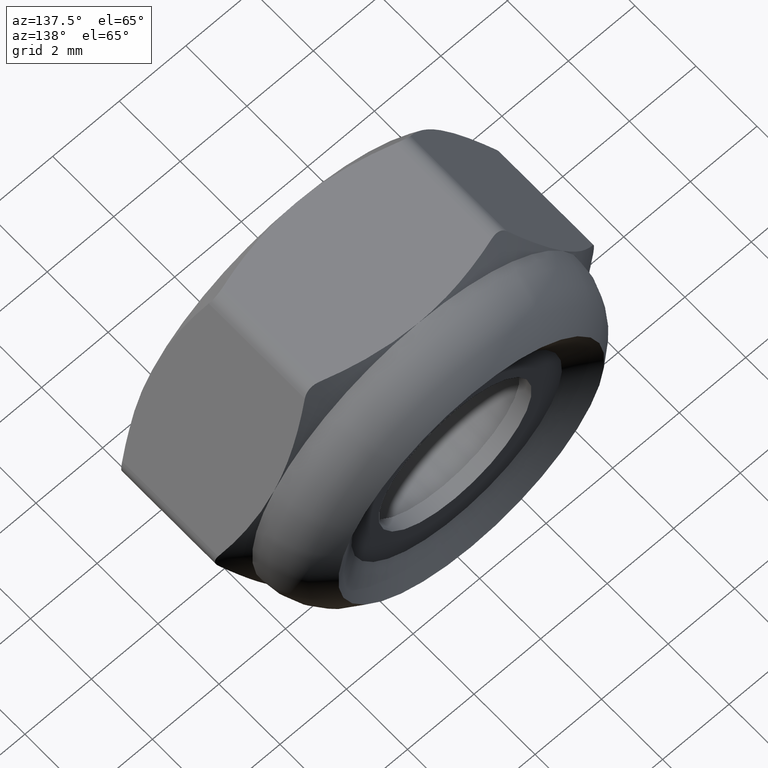
[diagram: clean part render]
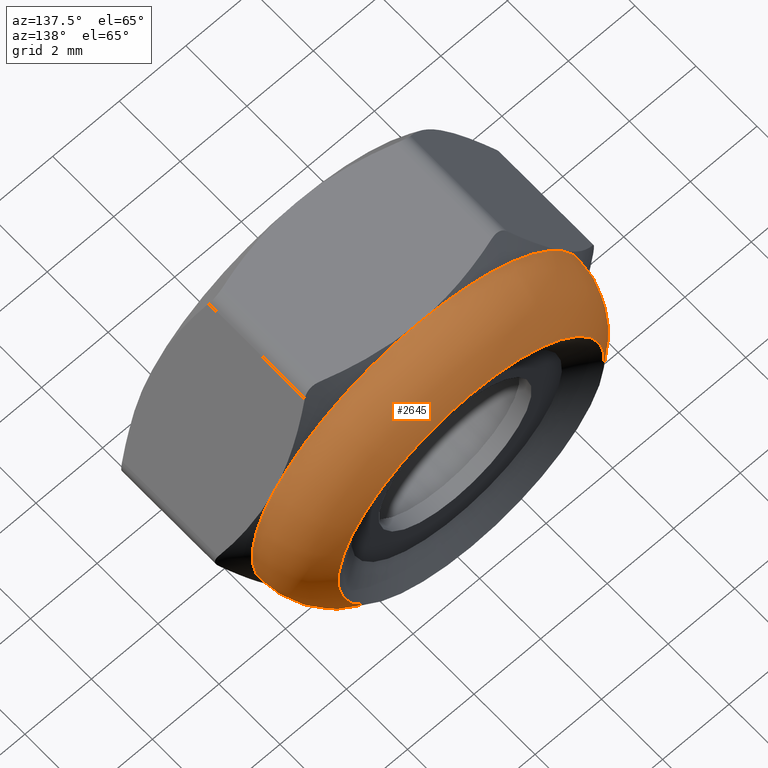
[diagram: same view with one face highlighted and labeled with its STEP entity id]
A machine part, auxiliary view. The second image highlights one B-rep face of the part: STEP entity #2645.
In plain terms, the highlighted toroidal blend (fillet) surface has major radius 3 mm and minor (blend) radius 2 mm.
Its self-contained STEP definition (entity closure, byte-faithful):
#200 = CARTESIAN_POINT ( 'NONE',  ( 4.330127018922192761, 2.000000000000000000, -2.500000000000001776 ) ) ;
#603 = DIRECTION ( 'NONE',  ( 0.000000000000000000, 0.000000000000000000, -1.000000000000000000 ) ) ;
#614 = VERTEX_POINT ( 'NONE', #8425 ) ;
#626 = EDGE_LOOP ( 'NONE', ( #15178 ) ) ;
#671 = DIRECTION ( 'NONE',  ( -0.000000000000000000, -1.000000000000000000, -0.000000000000000000 ) ) ;
#1294 = VERTEX_POINT ( 'NONE', #13614 ) ;
#1524 = CIRCLE ( 'NONE', #1858, 5.000000000000000000 ) ;
#1695 = DIRECTION ( 'NONE',  ( 1.776356839400250465E-15, 0.000000000000000000, 1.000000000000000000 ) ) ;
#1737 = DIRECTION ( 'NONE',  ( -3.552713678800500929E-15, 0.000000000000000000, 1.000000000000000000 ) ) ;
#1858 = AXIS2_PLACEMENT_3D ( 'NONE', #15053, #11325, #13718 ) ;
#1872 = EDGE_CURVE ( 'NONE', #13733, #6317, #12132, .T. ) ;
#1939 = DIRECTION ( 'NONE',  ( 0.000000000000000000, -1.000000000000000000, 0.000000000000000000 ) ) ;
#2055 = ORIENTED_EDGE ( 'NONE', *, *, #5380, .F. ) ;
#2297 = EDGE_CURVE ( 'NONE', #2732, #2732, #12900, .T. ) ;
#2380 = CARTESIAN_POINT ( 'NONE',  ( 0.000000000000000000, 2.000000000000000000, 0.000000000000000000 ) ) ;
#2414 = EDGE_CURVE ( 'NONE', #1294, #13684, #7546, .T. ) ;
#2645 = ADVANCED_FACE ( 'NONE', ( #9256, #4684 ), #6765, .T. ) ;
#2732 = VERTEX_POINT ( 'NONE', #6062 ) ;
#2907 = CARTESIAN_POINT ( 'NONE',  ( -4.330127018922193649, 2.000000000000000000, 2.499999999999999112 ) ) ;
#3330 = CARTESIAN_POINT ( 'NONE',  ( 4.330127018922193649, 2.000000000000000000, 2.499999999999999112 ) ) ;
#3337 = CARTESIAN_POINT ( 'NONE',  ( 0.000000000000000000, 2.000000000000000000, 0.000000000000000000 ) ) ;
#4210 = CARTESIAN_POINT ( 'NONE',  ( 0.000000000000000000, 2.000000000000000000, 0.000000000000000000 ) ) ;
#4353 = ORIENTED_EDGE ( 'NONE', *, *, #2414, .F. ) ;
#4532 = ORIENTED_EDGE ( 'NONE', *, *, #9912, .F. ) ;
#4684 = FACE_OUTER_BOUND ( 'NONE', #5933, .T. ) ;
#4839 = DIRECTION ( 'NONE',  ( -0.000000000000000000, -1.000000000000000000, -0.000000000000000000 ) ) ;
#4904 = AXIS2_PLACEMENT_3D ( 'NONE', #5343, #5294, #5461 ) ;
#5294 = DIRECTION ( 'NONE',  ( 0.000000000000000000, 1.000000000000000000, 0.000000000000000000 ) ) ;
#5343 = CARTESIAN_POINT ( 'NONE',  ( 0.000000000000000000, 2.000000000000000000, 0.000000000000000000 ) ) ;
#5375 = DIRECTION ( 'NONE',  ( -0.000000000000000000, -1.000000000000000000, -0.000000000000000000 ) ) ;
#5380 = EDGE_CURVE ( 'NONE', #6317, #614, #15149, .T. ) ;
#5461 = DIRECTION ( 'NONE',  ( 0.000000000000000000, 0.000000000000000000, 1.000000000000000000 ) ) ;
#5748 = DIRECTION ( 'NONE',  ( 1.776356839400250465E-15, 0.000000000000000000, 1.000000000000000000 ) ) ;
#5899 = CARTESIAN_POINT ( 'NONE',  ( -7.511572993685800087E-16, 2.000000000000000000, -5.000000000000000000 ) ) ;
#5933 = EDGE_LOOP ( 'NONE', ( #11154, #4532, #2055, #9800, #12519, #4353 ) ) ;
#5960 = DIRECTION ( 'NONE',  ( 0.000000000000000000, 0.000000000000000000, 1.000000000000000000 ) ) ;
#6062 = CARTESIAN_POINT ( 'NONE',  ( 0.000000000000000000, 3.732050807568856765, -4.000000000000015099 ) ) ;
#6181 = CARTESIAN_POINT ( 'NONE',  ( 0.000000000000000000, 2.000000000000000000, 0.000000000000000000 ) ) ;
#6234 = DIRECTION ( 'NONE',  ( -0.000000000000000000, -1.000000000000000000, -0.000000000000000000 ) ) ;
#6317 = VERTEX_POINT ( 'NONE', #3330 ) ;
#6765 = TOROIDAL_SURFACE ( 'NONE', #4904, 3.000000000000000000, 2.000000000000000000 ) ;
#7546 = CIRCLE ( 'NONE', #8791, 5.000000000000000000 ) ;
#7653 = AXIS2_PLACEMENT_3D ( 'NONE', #12949, #1939, #603 ) ;
#8317 = EDGE_CURVE ( 'NONE', #15658, #1294, #1524, .T. ) ;
#8396 = CIRCLE ( 'NONE', #14668, 5.000000000000000000 ) ;
#8425 = CARTESIAN_POINT ( 'NONE',  ( 0.000000000000000000, 2.000000000000000000, 5.000000000000000000 ) ) ;
#8486 = AXIS2_PLACEMENT_3D ( 'NONE', #9077, #671, #1695 ) ;
#8636 = DIRECTION ( 'NONE',  ( 0.000000000000000000, 0.000000000000000000, -1.000000000000000000 ) ) ;
#8791 = AXIS2_PLACEMENT_3D ( 'NONE', #3337, #15636, #5748 ) ;
#9077 = CARTESIAN_POINT ( 'NONE',  ( 0.000000000000000000, 2.000000000000000000, 0.000000000000000000 ) ) ;
#9256 = FACE_OUTER_BOUND ( 'NONE', #626, .T. ) ;
#9463 = EDGE_CURVE ( 'NONE', #13684, #13733, #9515, .T. ) ;
#9515 = CIRCLE ( 'NONE', #9734, 5.000000000000000000 ) ;
#9734 = AXIS2_PLACEMENT_3D ( 'NONE', #6181, #6234, #8636 ) ;
#9800 = ORIENTED_EDGE ( 'NONE', *, *, #1872, .F. ) ;
#9912 = EDGE_CURVE ( 'NONE', #614, #15658, #8396, .T. ) ;
#10861 = AXIS2_PLACEMENT_3D ( 'NONE', #4210, #5375, #1737 ) ;
#11154 = ORIENTED_EDGE ( 'NONE', *, *, #8317, .F. ) ;
#11325 = DIRECTION ( 'NONE',  ( -0.000000000000000000, -1.000000000000000000, -0.000000000000000000 ) ) ;
#12132 = CIRCLE ( 'NONE', #8486, 5.000000000000000000 ) ;
#12519 = ORIENTED_EDGE ( 'NONE', *, *, #9463, .F. ) ;
#12900 = CIRCLE ( 'NONE', #7653, 4.000000000000015099 ) ;
#12949 = CARTESIAN_POINT ( 'NONE',  ( 0.000000000000000000, 3.732050807568856765, 0.000000000000000000 ) ) ;
#13614 = CARTESIAN_POINT ( 'NONE',  ( -4.330127018922193649, 2.000000000000000000, -2.500000000000000000 ) ) ;
#13684 = VERTEX_POINT ( 'NONE', #5899 ) ;
#13718 = DIRECTION ( 'NONE',  ( 0.000000000000000000, 0.000000000000000000, 1.000000000000000000 ) ) ;
#13733 = VERTEX_POINT ( 'NONE', #200 ) ;
#14668 = AXIS2_PLACEMENT_3D ( 'NONE', #2380, #4839, #5960 ) ;
#15053 = CARTESIAN_POINT ( 'NONE',  ( 0.000000000000000000, 2.000000000000000000, 0.000000000000000000 ) ) ;
#15149 = CIRCLE ( 'NONE', #10861, 5.000000000000000000 ) ;
#15178 = ORIENTED_EDGE ( 'NONE', *, *, #2297, .T. ) ;
#15636 = DIRECTION ( 'NONE',  ( -0.000000000000000000, -1.000000000000000000, -0.000000000000000000 ) ) ;
#15658 = VERTEX_POINT ( 'NONE', #2907 ) ;